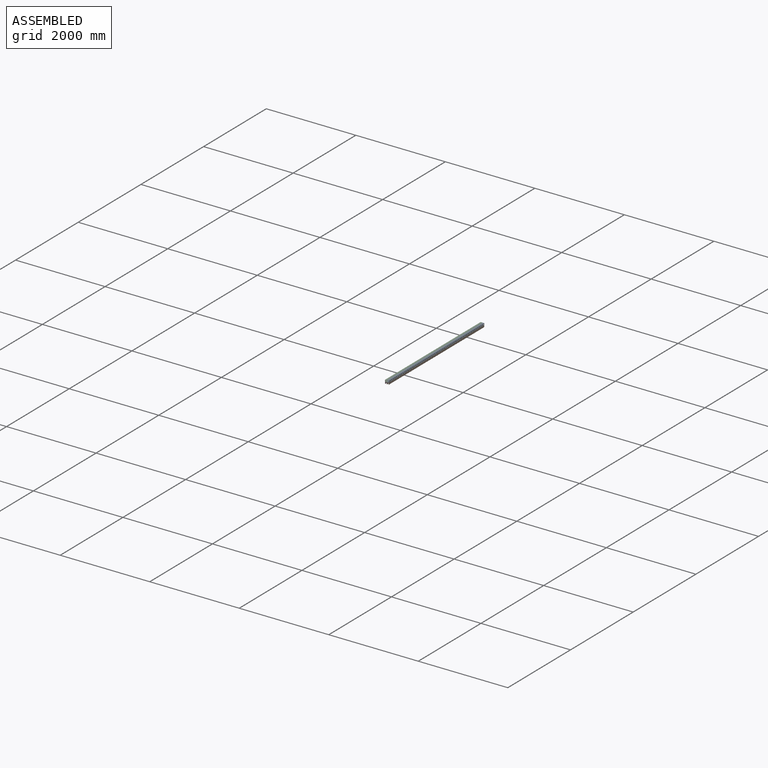
[diagram: assembled view]
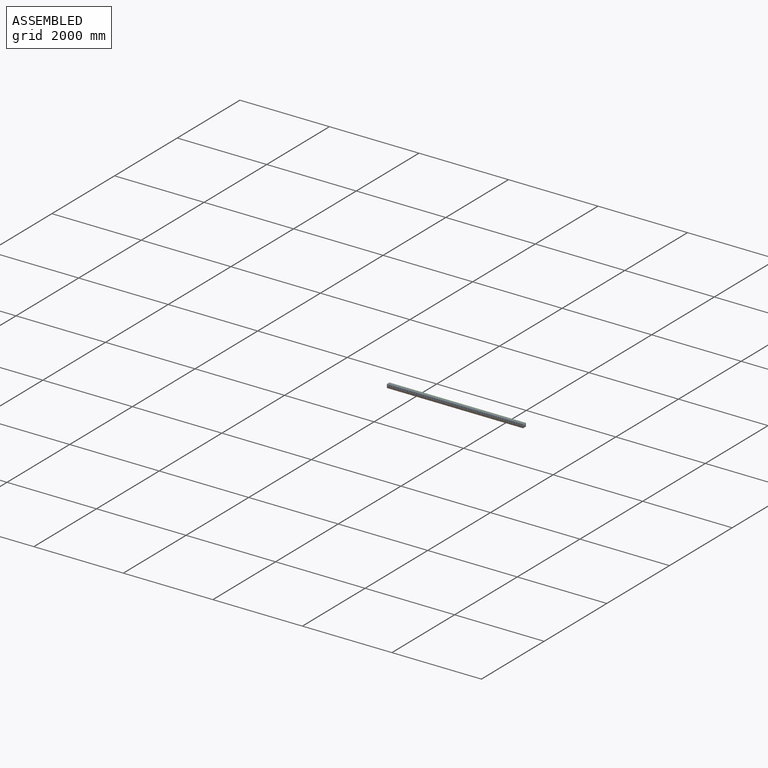
[diagram: assembled view, second angle]
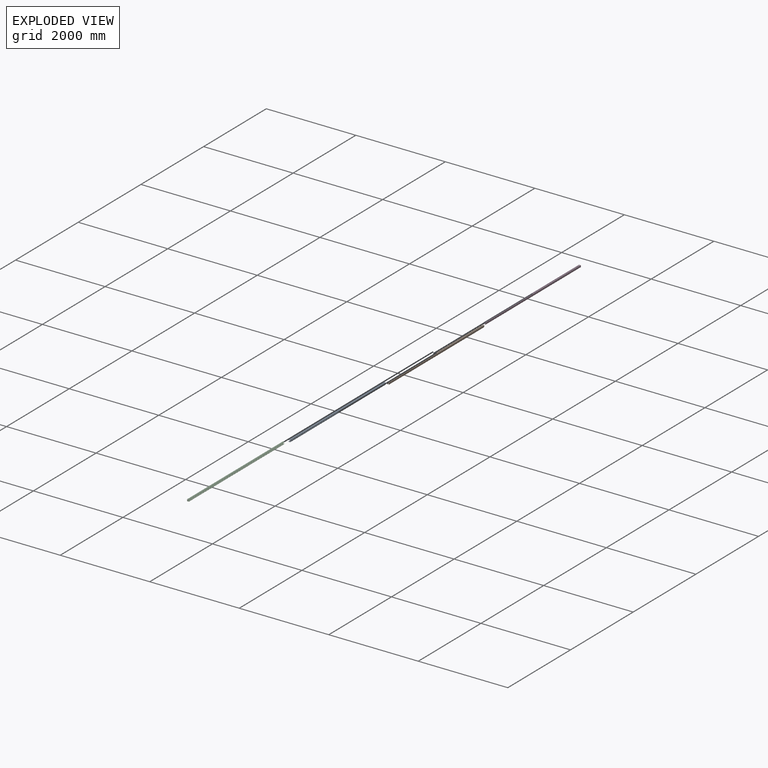
[diagram: exploded view]
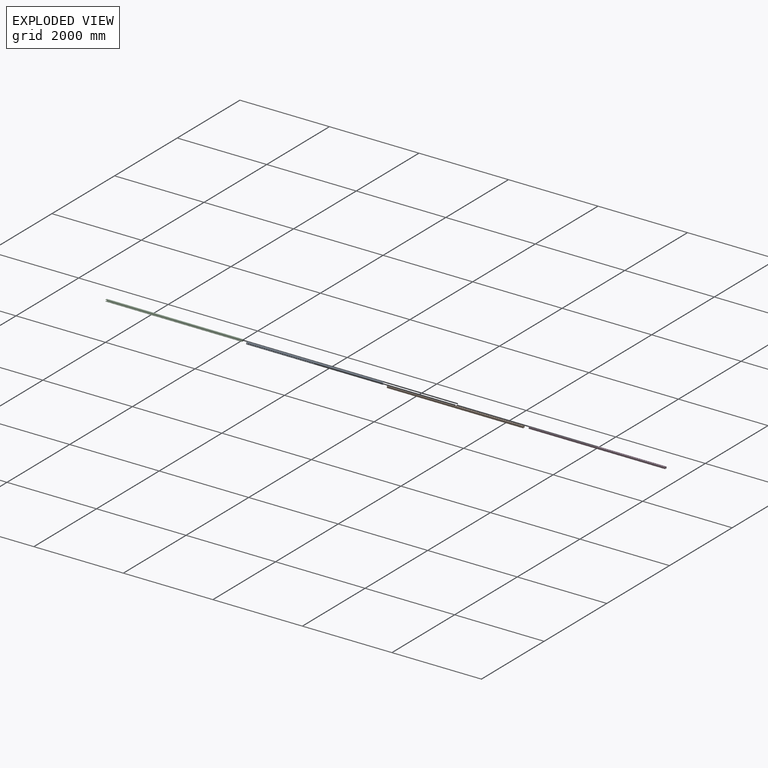
[diagram: exploded view, second angle]
ASSEMBLY  parts=4 mates=3
PART A: 270 faces, bbox 41.3x41.3x3048 mm
  f0: cylinder r=7.14mm len=14.29mm, axis (1,0,0), area 57mm2, adj f11,f24,f50,f51
  f1: cylinder r=7.14mm len=14.29mm, axis (1,0,0), area 57mm2, adj f11,f24,f47,f48
  f2: cylinder r=7.14mm len=14.29mm, axis (1,0,0), area 57mm2, adj f11,f24,f44,f45
  f3: cylinder r=7.14mm len=14.29mm, axis (1,0,0), area 57mm2, adj f11,f24,f41,f42
  f4: cylinder r=7.14mm len=14.29mm, axis (1,0,0), area 57mm2, adj f11,f24,f39,f40
  f5: cylinder r=7.14mm len=14.29mm, axis (1,0,0), area 57mm2, adj f11,f24,f36,f37
  f6: cylinder r=1.27mm len=3048mm, axis (0,0,1), area 12161mm2, adj f30,f31,f34,f251
  f7: cylinder r=1.27mm len=3048mm, axis (0,0,1), area 12161mm2, adj f17,f18,f34,f251
  f8: cylinder r=5.05mm len=3048mm, axis (0,0,1), area 24169.9mm2, adj f9,f33,f34,f251
  f9: plane 3048x32.77mm, normal (0,1,0), area 99870.8mm2, adj f8,f10,f34,f251
  f10: cylinder r=3.46mm len=3048mm, axis (0,0,1), area 16569.3mm2, adj f9,f11,f34,f251
  f11: plane 3048x34.35mm, normal (1,0,0), area 82842mm2, adj f0,f1,f2,f3,f4,f5,f10,f12
  f12: cylinder r=3.46mm len=3048mm, axis (0,0,1), area 16569.3mm2, adj f11,f13,f34,f251
  f13: plane 3048x32.77mm, normal (0,-1,0), area 99870.8mm2, adj f12,f14,f34,f251
  f14: cylinder r=5.05mm len=3048mm, axis (0,0,1), area 24169.9mm2, adj f13,f15,f34,f251
  f15: plane 3048x1.02mm, normal (-1,0,0), area 3096.8mm2, adj f14,f16,f34,f251
  f16: cylinder r=3.46mm len=3048mm, axis (0,0,1), area 16569.3mm2, adj f15,f17,f34,f251
  f17: plane 3048x2.41mm, normal (0,1,0), area 7335.5mm2, adj f7,f16,f34,f251
  f18: plane 3048x2.41mm, normal (0,-1,0), area 7335.5mm2, adj f7,f19,f34,f251
  f19: cylinder r=0.92mm len=3048mm, axis (0,0,1), area 4408.4mm2, adj f18,f20,f34,f251
  f20: plane 3048x1.02mm, normal (1,0,0), area 3096.8mm2, adj f19,f21,f34,f251
  f21: cylinder r=2.51mm len=3048mm, axis (0,0,1), area 12009mm2, adj f20,f22,f34,f251
  f22: plane 3048x32.77mm, normal (0,1,0), area 99870.8mm2, adj f21,f23,f34,f251
  f23: cylinder r=0.92mm len=3048mm, axis (0,0,1), area 4408.4mm2, adj f22,f24,f34,f251
  f24: plane 3048x34.35mm, normal (-1,0,0), area 82842mm2, adj f0,f1,f2,f3,f4,f5,f23,f25
  f25: cylinder r=0.92mm len=3048mm, axis (0,0,1), area 4408.4mm2, adj f24,f26,f34,f251
  f26: plane 3048x32.77mm, normal (0,-1,0), area 99870.8mm2, adj f25,f27,f34,f251
  f27: cylinder r=2.51mm len=3048mm, axis (0,0,1), area 12009mm2, adj f26,f28,f34,f251
  f28: plane 3048x1.02mm, normal (1,0,0), area 3096.8mm2, adj f27,f29,f34,f251
  f29: cylinder r=0.92mm len=3048mm, axis (0,0,1), area 4408.4mm2, adj f28,f30,f34,f251
  f30: plane 3048x2.41mm, normal (0,1,0), area 7335.5mm2, adj f6,f29,f34,f251
  f31: plane 3048x2.41mm, normal (0,-1,0), area 7335.5mm2, adj f6,f32,f34,f251
  f32: cylinder r=3.46mm len=3048mm, axis (0,0,1), area 16569.3mm2, adj f31,f33,f34,f251
  f33: plane 3048x1.02mm, normal (-1,0,0), area 3096.8mm2, adj f8,f32,f34,f251
  f34: plane 41.28x41.28mm, normal (0,0,1), area 341.3mm2, adj f6,f7,f8,f9,f10,f11,f12,f13
  f35: cylinder r=7.14mm len=14.29mm, axis (1,0,0), area 57mm2, adj f11,f24,f36,f37
  f36: plane 14.29x2.54mm, normal (0,-1,0), area 36.3mm2, adj f5,f11,f24,f35
  f37: plane 14.29x2.54mm, normal (0,1,0), area 36.3mm2, adj f5,f11,f24,f35
  f38: cylinder r=7.14mm len=14.29mm, axis (1,0,0), area 57mm2, adj f11,f24,f39,f40
  f39: plane 14.29x2.54mm, normal (0,-1,0), area 36.3mm2, adj f4,f11,f24,f38
  f40: plane 14.29x2.54mm, normal (0,1,0), area 36.3mm2, adj f4,f11,f24,f38
  f41: plane 14.29x2.54mm, normal (0,1,0), area 36.3mm2, adj f3,f11,f24,f43
  f42: plane 14.29x2.54mm, normal (0,-1,0), area 36.3mm2, adj f3,f11,f24,f43
  f43: cylinder r=7.14mm len=14.29mm, axis (1,0,0), area 57mm2, adj f11,f24,f41,f42
  f44: plane 14.29x2.54mm, normal (0,1,0), area 36.3mm2, adj f2,f11,f24,f46
  f45: plane 14.29x2.54mm, normal (0,-1,0), area 36.3mm2, adj f2,f11,f24,f46
  f46: cylinder r=7.14mm len=14.29mm, axis (1,0,0), area 57mm2, adj f11,f24,f44,f45
  f47: plane 14.29x2.54mm, normal (0,1,0), area 36.3mm2, adj f1,f11,f24,f49
  f48: plane 14.29x2.54mm, normal (0,-1,0), area 36.3mm2, adj f1,f11,f24,f49
  f49: cylinder r=7.14mm len=14.29mm, axis (1,0,0), area 57mm2, adj f11,f24,f47,f48
  f50: plane 14.29x2.54mm, normal (0,1,0), area 36.3mm2, adj f0,f11,f24,f52
  f51: plane 14.29x2.54mm, normal (0,-1,0), area 36.3mm2, adj f0,f11,f24,f52
  f52: cylinder r=7.14mm len=14.29mm, axis (1,0,0), area 57mm2, adj f11,f24,f50,f51
  f53: cylinder r=7.14mm len=14.29mm, axis (1,0,0), area 57mm2, adj f11,f24,f74,f75
  f54: cylinder r=7.14mm len=14.29mm, axis (1,0,0), area 57mm2, adj f11,f24,f71,f72
  f55: cylinder r=7.14mm len=14.29mm, axis (1,0,0), area 57mm2, adj f11,f24,f68,f69
  f56: cylinder r=7.14mm len=14.29mm, axis (1,0,0), area 57mm2, adj f11,f24,f65,f66
  f57: cylinder r=7.14mm len=14.29mm, axis (1,0,0), area 57mm2, adj f11,f24,f63,f64
  f58: cylinder r=7.14mm len=14.29mm, axis (1,0,0), area 57mm2, adj f11,f24,f60,f61
  f59: cylinder r=7.14mm len=14.29mm, axis (1,0,0), area 57mm2, adj f11,f24,f60,f61
  f60: plane 14.29x2.54mm, normal (0,-1,0), area 36.3mm2, adj f11,f24,f58,f59
  f61: plane 14.29x2.54mm, normal (0,1,0), area 36.3mm2, adj f11,f24,f58,f59
  f62: cylinder r=7.14mm len=14.29mm, axis (1,0,0), area 57mm2, adj f11,f24,f63,f64
  f63: plane 14.29x2.54mm, normal (0,-1,0), area 36.3mm2, adj f11,f24,f57,f62
  f64: plane 14.29x2.54mm, normal (0,1,0), area 36.3mm2, adj f11,f24,f57,f62
  f65: plane 14.29x2.54mm, normal (0,1,0), area 36.3mm2, adj f11,f24,f56,f67
  f66: plane 14.29x2.54mm, normal (0,-1,0), area 36.3mm2, adj f11,f24,f56,f67
  f67: cylinder r=7.14mm len=14.29mm, axis (1,0,0), area 57mm2, adj f11,f24,f65,f66
  f68: plane 14.29x2.54mm, normal (0,1,0), area 36.3mm2, adj f11,f24,f55,f70
  f69: plane 14.29x2.54mm, normal (0,-1,0), area 36.3mm2, adj f11,f24,f55,f70
  f70: cylinder r=7.14mm len=14.29mm, axis (1,0,0), area 57mm2, adj f11,f24,f68,f69
  f71: plane 14.29x2.54mm, normal (0,1,0), area 36.3mm2, adj f11,f24,f54,f73
  f72: plane 14.29x2.54mm, normal (0,-1,0), area 36.3mm2, adj f11,f24,f54,f73
  f73: cylinder r=7.14mm len=14.29mm, axis (1,0,0), area 57mm2, adj f11,f24,f71,f72
  f74: plane 14.29x2.54mm, normal (0,1,0), area 36.3mm2, adj f11,f24,f53,f76
  f75: plane 14.29x2.54mm, normal (0,-1,0), area 36.3mm2, adj f11,f24,f53,f76
  f76: cylinder r=7.14mm len=14.29mm, axis (1,0,0), area 57mm2, adj f11,f24,f74,f75
  f77: cylinder r=7.14mm len=14.29mm, axis (1,0,0), area 57mm2, adj f11,f24,f98,f99
  f78: cylinder r=7.14mm len=14.29mm, axis (1,0,0), area 57mm2, adj f11,f24,f95,f96
  f79: cylinder r=7.14mm len=14.29mm, axis (1,0,0), area 57mm2, adj f11,f24,f92,f93
  f80: cylinder r=7.14mm len=14.29mm, axis (1,0,0), area 57mm2, adj f11,f24,f89,f90
  f81: cylinder r=7.14mm len=14.29mm, axis (1,0,0), area 57mm2, adj f11,f24,f87,f88
  f82: cylinder r=7.14mm len=14.29mm, axis (1,0,0), area 57mm2, adj f11,f24,f84,f85
  f83: cylinder r=7.14mm len=14.29mm, axis (1,0,0), area 57mm2, adj f11,f24,f84,f85
  f84: plane 14.29x2.54mm, normal (0,-1,0), area 36.3mm2, adj f11,f24,f82,f83
  f85: plane 14.29x2.54mm, normal (0,1,0), area 36.3mm2, adj f11,f24,f82,f83
  f86: cylinder r=7.14mm len=14.29mm, axis (1,0,0), area 57mm2, adj f11,f24,f87,f88
  f87: plane 14.29x2.54mm, normal (0,-1,0), area 36.3mm2, adj f11,f24,f81,f86
  f88: plane 14.29x2.54mm, normal (0,1,0), area 36.3mm2, adj f11,f24,f81,f86
  f89: plane 14.29x2.54mm, normal (0,1,0), area 36.3mm2, adj f11,f24,f80,f91
  f90: plane 14.29x2.54mm, normal (0,-1,0), area 36.3mm2, adj f11,f24,f80,f91
  f91: cylinder r=7.14mm len=14.29mm, axis (1,0,0), area 57mm2, adj f11,f24,f89,f90
  f92: plane 14.29x2.54mm, normal (0,1,0), area 36.3mm2, adj f11,f24,f79,f94
  f93: plane 14.29x2.54mm, normal (0,-1,0), area 36.3mm2, adj f11,f24,f79,f94
  f94: cylinder r=7.14mm len=14.29mm, axis (1,0,0), area 57mm2, adj f11,f24,f92,f93
  f95: plane 14.29x2.54mm, normal (0,1,0), area 36.3mm2, adj f11,f24,f78,f97
  f96: plane 14.29x2.54mm, normal (0,-1,0), area 36.3mm2, adj f11,f24,f78,f97
  f97: cylinder r=7.14mm len=14.29mm, axis (1,0,0), area 57mm2, adj f11,f24,f95,f96
  f98: plane 14.29x2.54mm, normal (0,1,0), area 36.3mm2, adj f11,f24,f77,f100
  f99: plane 14.29x2.54mm, normal (0,-1,0), area 36.3mm2, adj f11,f24,f77,f100
  f100: cylinder r=7.14mm len=14.29mm, axis (1,0,0), area 57mm2, adj f11,f24,f98,f99
  f101: cylinder r=7.14mm len=14.29mm, axis (1,0,0), area 57mm2, adj f11,f24,f122,f123
  f102: cylinder r=7.14mm len=14.29mm, axis (1,0,0), area 57mm2, adj f11,f24,f119,f120
  f103: cylinder r=7.14mm len=14.29mm, axis (1,0,0), area 57mm2, adj f11,f24,f116,f117
  f104: cylinder r=7.14mm len=14.29mm, axis (1,0,0), area 57mm2, adj f11,f24,f113,f114
  f105: cylinder r=7.14mm len=14.29mm, axis (1,0,0), area 57mm2, adj f11,f24,f111,f112
  f106: cylinder r=7.14mm len=14.29mm, axis (1,0,0), area 57mm2, adj f11,f24,f108,f109
  f107: cylinder r=7.14mm len=14.29mm, axis (1,0,0), area 57mm2, adj f11,f24,f108,f109
  f108: plane 14.29x2.54mm, normal (0,-1,0), area 36.3mm2, adj f11,f24,f106,f107
  f109: plane 14.29x2.54mm, normal (0,1,0), area 36.3mm2, adj f11,f24,f106,f107
  f110: cylinder r=7.14mm len=14.29mm, axis (1,0,0), area 57mm2, adj f11,f24,f111,f112
  f111: plane 14.29x2.54mm, normal (0,-1,0), area 36.3mm2, adj f11,f24,f105,f110
  f112: plane 14.29x2.54mm, normal (0,1,0), area 36.3mm2, adj f11,f24,f105,f110
  f113: plane 14.29x2.54mm, normal (0,1,0), area 36.3mm2, adj f11,f24,f104,f115
  f114: plane 14.29x2.54mm, normal (0,-1,0), area 36.3mm2, adj f11,f24,f104,f115
  f115: cylinder r=7.14mm len=14.29mm, axis (1,0,0), area 57mm2, adj f11,f24,f113,f114
  f116: plane 14.29x2.54mm, normal (0,1,0), area 36.3mm2, adj f11,f24,f103,f118
  f117: plane 14.29x2.54mm, normal (0,-1,0), area 36.3mm2, adj f11,f24,f103,f118
  f118: cylinder r=7.14mm len=14.29mm, axis (1,0,0), area 57mm2, adj f11,f24,f116,f117
  f119: plane 14.29x2.54mm, normal (0,1,0), area 36.3mm2, adj f11,f24,f102,f121
  f120: plane 14.29x2.54mm, normal (0,-1,0), area 36.3mm2, adj f11,f24,f102,f121
  f121: cylinder r=7.14mm len=14.29mm, axis (1,0,0), area 57mm2, adj f11,f24,f119,f120
  f122: plane 14.29x2.54mm, normal (0,1,0), area 36.3mm2, adj f11,f24,f101,f124
  f123: plane 14.29x2.54mm, normal (0,-1,0), area 36.3mm2, adj f11,f24,f101,f124
  f124: cylinder r=7.14mm len=14.29mm, axis (1,0,0), area 57mm2, adj f11,f24,f122,f123
  f125: cylinder r=7.14mm len=14.29mm, axis (1,0,0), area 57mm2, adj f11,f24,f146,f147
  f126: cylinder r=7.14mm len=14.29mm, axis (1,0,0), area 57mm2, adj f11,f24,f143,f144
  f127: cylinder r=7.14mm len=14.29mm, axis (1,0,0), area 57mm2, adj f11,f24,f140,f141
  f128: cylinder r=7.14mm len=14.29mm, axis (1,0,0), area 57mm2, adj f11,f24,f137,f138
  f129: cylinder r=7.14mm len=14.29mm, axis (1,0,0), area 57mm2, adj f11,f24,f135,f136
  f130: cylinder r=7.14mm len=14.29mm, axis (1,0,0), area 57mm2, adj f11,f24,f132,f133
  f131: cylinder r=7.14mm len=14.29mm, axis (1,0,0), area 57mm2, adj f11,f24,f132,f133
  f132: plane 14.29x2.54mm, normal (0,-1,0), area 36.3mm2, adj f11,f24,f130,f131
  f133: plane 14.29x2.54mm, normal (0,1,0), area 36.3mm2, adj f11,f24,f130,f131
  f134: cylinder r=7.14mm len=14.29mm, axis (1,0,0), area 57mm2, adj f11,f24,f135,f136
  f135: plane 14.29x2.54mm, normal (0,-1,0), area 36.3mm2, adj f11,f24,f129,f134
  f136: plane 14.29x2.54mm, normal (0,1,0), area 36.3mm2, adj f11,f24,f129,f134
  f137: plane 14.29x2.54mm, normal (0,1,0), area 36.3mm2, adj f11,f24,f128,f139
  f138: plane 14.29x2.54mm, normal (0,-1,0), area 36.3mm2, adj f11,f24,f128,f139
  f139: cylinder r=7.14mm len=14.29mm, axis (1,0,0), area 57mm2, adj f11,f24,f137,f138
  f140: plane 14.29x2.54mm, normal (0,1,0), area 36.3mm2, adj f11,f24,f127,f142
  f141: plane 14.29x2.54mm, normal (0,-1,0), area 36.3mm2, adj f11,f24,f127,f142
  f142: cylinder r=7.14mm len=14.29mm, axis (1,0,0), area 57mm2, adj f11,f24,f140,f141
  f143: plane 14.29x2.54mm, normal (0,1,0), area 36.3mm2, adj f11,f24,f126,f145
  f144: plane 14.29x2.54mm, normal (0,-1,0), area 36.3mm2, adj f11,f24,f126,f145
  f145: cylinder r=7.14mm len=14.29mm, axis (1,0,0), area 57mm2, adj f11,f24,f143,f144
  f146: plane 14.29x2.54mm, normal (0,1,0), area 36.3mm2, adj f11,f24,f125,f148
  f147: plane 14.29x2.54mm, normal (0,-1,0), area 36.3mm2, adj f11,f24,f125,f148
  f148: cylinder r=7.14mm len=14.29mm, axis (1,0,0), area 57mm2, adj f11,f24,f146,f147
  f149: cylinder r=7.14mm len=14.29mm, axis (1,0,0), area 57mm2, adj f11,f24,f170,f171
  f150: cylinder r=7.14mm len=14.29mm, axis (1,0,0), area 57mm2, adj f11,f24,f167,f168
  f151: cylinder r=7.14mm len=14.29mm, axis (1,0,0), area 57mm2, adj f11,f24,f164,f165
  f152: cylinder r=7.14mm len=14.29mm, axis (1,0,0), area 57mm2, adj f11,f24,f161,f162
  f153: cylinder r=7.14mm len=14.29mm, axis (1,0,0), area 57mm2, adj f11,f24,f159,f160
  f154: cylinder r=7.14mm len=14.29mm, axis (1,0,0), area 57mm2, adj f11,f24,f156,f157
  f155: cylinder r=7.14mm len=14.29mm, axis (1,0,0), area 57mm2, adj f11,f24,f156,f157
  f156: plane 14.29x2.54mm, normal (0,-1,0), area 36.3mm2, adj f11,f24,f154,f155
  f157: plane 14.29x2.54mm, normal (0,1,0), area 36.3mm2, adj f11,f24,f154,f155
  f158: cylinder r=7.14mm len=14.29mm, axis (1,0,0), area 57mm2, adj f11,f24,f159,f160
  f159: plane 14.29x2.54mm, normal (0,-1,0), area 36.3mm2, adj f11,f24,f153,f158
  f160: plane 14.29x2.54mm, normal (0,1,0), area 36.3mm2, adj f11,f24,f153,f158
  f161: plane 14.29x2.54mm, normal (0,1,0), area 36.3mm2, adj f11,f24,f152,f163
  f162: plane 14.29x2.54mm, normal (0,-1,0), area 36.3mm2, adj f11,f24,f152,f163
  f163: cylinder r=7.14mm len=14.29mm, axis (1,0,0), area 57mm2, adj f11,f24,f161,f162
  f164: plane 14.29x2.54mm, normal (0,1,0), area 36.3mm2, adj f11,f24,f151,f166
  f165: plane 14.29x2.54mm, normal (0,-1,0), area 36.3mm2, adj f11,f24,f151,f166
  f166: cylinder r=7.14mm len=14.29mm, axis (1,0,0), area 57mm2, adj f11,f24,f164,f165
  f167: plane 14.29x2.54mm, normal (0,1,0), area 36.3mm2, adj f11,f24,f150,f169
  f168: plane 14.29x2.54mm, normal (0,-1,0), area 36.3mm2, adj f11,f24,f150,f169
  f169: cylinder r=7.14mm len=14.29mm, axis (1,0,0), area 57mm2, adj f11,f24,f167,f168
  f170: plane 14.29x2.54mm, normal (0,1,0), area 36.3mm2, adj f11,f24,f149,f172
  f171: plane 14.29x2.54mm, normal (0,-1,0), area 36.3mm2, adj f11,f24,f149,f172
  f172: cylinder r=7.14mm len=14.29mm, axis (1,0,0), area 57mm2, adj f11,f24,f170,f171
  f173: cylinder r=7.14mm len=14.29mm, axis (1,0,0), area 57mm2, adj f11,f24,f194,f195
  f174: cylinder r=7.14mm len=14.29mm, axis (1,0,0), area 57mm2, adj f11,f24,f191,f192
  f175: cylinder r=7.14mm len=14.29mm, axis (1,0,0), area 57mm2, adj f11,f24,f188,f189
  f176: cylinder r=7.14mm len=14.29mm, axis (1,0,0), area 57mm2, adj f11,f24,f185,f186
  f177: cylinder r=7.14mm len=14.29mm, axis (1,0,0), area 57mm2, adj f11,f24,f183,f184
  f178: cylinder r=7.14mm len=14.29mm, axis (1,0,0), area 57mm2, adj f11,f24,f180,f181
  f179: cylinder r=7.14mm len=14.29mm, axis (1,0,0), area 57mm2, adj f11,f24,f180,f181
  f180: plane 14.29x2.54mm, normal (0,-1,0), area 36.3mm2, adj f11,f24,f178,f179
  f181: plane 14.29x2.54mm, normal (0,1,0), area 36.3mm2, adj f11,f24,f178,f179
  f182: cylinder r=7.14mm len=14.29mm, axis (1,0,0), area 57mm2, adj f11,f24,f183,f184
  f183: plane 14.29x2.54mm, normal (0,-1,0), area 36.3mm2, adj f11,f24,f177,f182
  f184: plane 14.29x2.54mm, normal (0,1,0), area 36.3mm2, adj f11,f24,f177,f182
  f185: plane 14.29x2.54mm, normal (0,1,0), area 36.3mm2, adj f11,f24,f176,f187
  f186: plane 14.29x2.54mm, normal (0,-1,0), area 36.3mm2, adj f11,f24,f176,f187
  f187: cylinder r=7.14mm len=14.29mm, axis (1,0,0), area 57mm2, adj f11,f24,f185,f186
  f188: plane 14.29x2.54mm, normal (0,1,0), area 36.3mm2, adj f11,f24,f175,f190
  f189: plane 14.29x2.54mm, normal (0,-1,0), area 36.3mm2, adj f11,f24,f175,f190
  f190: cylinder r=7.14mm len=14.29mm, axis (1,0,0), area 57mm2, adj f11,f24,f188,f189
  f191: plane 14.29x2.54mm, normal (0,1,0), area 36.3mm2, adj f11,f24,f174,f193
  f192: plane 14.29x2.54mm, normal (0,-1,0), area 36.3mm2, adj f11,f24,f174,f193
  f193: cylinder r=7.14mm len=14.29mm, axis (1,0,0), area 57mm2, adj f11,f24,f191,f192
  f194: plane 14.29x2.54mm, normal (0,1,0), area 36.3mm2, adj f11,f24,f173,f196
  f195: plane 14.29x2.54mm, normal (0,-1,0), area 36.3mm2, adj f11,f24,f173,f196
  f196: cylinder r=7.14mm len=14.29mm, axis (1,0,0), area 57mm2, adj f11,f24,f194,f195
  f197: cylinder r=7.14mm len=14.29mm, axis (1,0,0), area 57mm2, adj f11,f24,f218,f219
  f198: cylinder r=7.14mm len=14.29mm, axis (1,0,0), area 57mm2, adj f11,f24,f215,f216
  f199: cylinder r=7.14mm len=14.29mm, axis (1,0,0), area 57mm2, adj f11,f24,f212,f213
  f200: cylinder r=7.14mm len=14.29mm, axis (1,0,0), area 57mm2, adj f11,f24,f209,f210
  f201: cylinder r=7.14mm len=14.29mm, axis (1,0,0), area 57mm2, adj f11,f24,f207,f208
  f202: cylinder r=7.14mm len=14.29mm, axis (1,0,0), area 57mm2, adj f11,f24,f204,f205
  f203: cylinder r=7.14mm len=14.29mm, axis (1,0,0), area 57mm2, adj f11,f24,f204,f205
  f204: plane 14.29x2.54mm, normal (0,-1,0), area 36.3mm2, adj f11,f24,f202,f203
  f205: plane 14.29x2.54mm, normal (0,1,0), area 36.3mm2, adj f11,f24,f202,f203
  f206: cylinder r=7.14mm len=14.29mm, axis (1,0,0), area 57mm2, adj f11,f24,f207,f208
  f207: plane 14.29x2.54mm, normal (0,-1,0), area 36.3mm2, adj f11,f24,f201,f206
  f208: plane 14.29x2.54mm, normal (0,1,0), area 36.3mm2, adj f11,f24,f201,f206
  f209: plane 14.29x2.54mm, normal (0,1,0), area 36.3mm2, adj f11,f24,f200,f211
  f210: plane 14.29x2.54mm, normal (0,-1,0), area 36.3mm2, adj f11,f24,f200,f211
  f211: cylinder r=7.14mm len=14.29mm, axis (1,0,0), area 57mm2, adj f11,f24,f209,f210
  f212: plane 14.29x2.54mm, normal (0,1,0), area 36.3mm2, adj f11,f24,f199,f214
  f213: plane 14.29x2.54mm, normal (0,-1,0), area 36.3mm2, adj f11,f24,f199,f214
  f214: cylinder r=7.14mm len=14.29mm, axis (1,0,0), area 57mm2, adj f11,f24,f212,f213
  f215: plane 14.29x2.54mm, normal (0,1,0), area 36.3mm2, adj f11,f24,f198,f217
  f216: plane 14.29x2.54mm, normal (0,-1,0), area 36.3mm2, adj f11,f24,f198,f217
  f217: cylinder r=7.14mm len=14.29mm, axis (1,0,0), area 57mm2, adj f11,f24,f215,f216
  f218: plane 14.29x2.54mm, normal (0,1,0), area 36.3mm2, adj f11,f24,f197,f220
  f219: plane 14.29x2.54mm, normal (0,-1,0), area 36.3mm2, adj f11,f24,f197,f220
  f220: cylinder r=7.14mm len=14.29mm, axis (1,0,0), area 57mm2, adj f11,f24,f218,f219
  f221: cylinder r=7.14mm len=14.29mm, axis (1,0,0), area 57mm2, adj f11,f24,f242,f243
  f222: cylinder r=7.14mm len=14.29mm, axis (1,0,0), area 57mm2, adj f11,f24,f239,f240
  f223: cylinder r=7.14mm len=14.29mm, axis (1,0,0), area 57mm2, adj f11,f24,f236,f237
  f224: cylinder r=7.14mm len=14.29mm, axis (1,0,0), area 57mm2, adj f11,f24,f233,f234
  f225: cylinder r=7.14mm len=14.29mm, axis (1,0,0), area 57mm2, adj f11,f24,f231,f232
  f226: cylinder r=7.14mm len=14.29mm, axis (1,0,0), area 57mm2, adj f11,f24,f228,f229
  f227: cylinder r=7.14mm len=14.29mm, axis (1,0,0), area 57mm2, adj f11,f24,f228,f229
  f228: plane 14.29x2.54mm, normal (0,-1,0), area 36.3mm2, adj f11,f24,f226,f227
  f229: plane 14.29x2.54mm, normal (0,1,0), area 36.3mm2, adj f11,f24,f226,f227
  f230: cylinder r=7.14mm len=14.29mm, axis (1,0,0), area 57mm2, adj f11,f24,f231,f232
  f231: plane 14.29x2.54mm, normal (0,-1,0), area 36.3mm2, adj f11,f24,f225,f230
  f232: plane 14.29x2.54mm, normal (0,1,0), area 36.3mm2, adj f11,f24,f225,f230
  f233: plane 14.29x2.54mm, normal (0,1,0), area 36.3mm2, adj f11,f24,f224,f235
  f234: plane 14.29x2.54mm, normal (0,-1,0), area 36.3mm2, adj f11,f24,f224,f235
  f235: cylinder r=7.14mm len=14.29mm, axis (1,0,0), area 57mm2, adj f11,f24,f233,f234
  f236: plane 14.29x2.54mm, normal (0,1,0), area 36.3mm2, adj f11,f24,f223,f238
  f237: plane 14.29x2.54mm, normal (0,-1,0), area 36.3mm2, adj f11,f24,f223,f238
  f238: cylinder r=7.14mm len=14.29mm, axis (1,0,0), area 57mm2, adj f11,f24,f236,f237
  f239: plane 14.29x2.54mm, normal (0,1,0), area 36.3mm2, adj f11,f24,f222,f241
  f240: plane 14.29x2.54mm, normal (0,-1,0), area 36.3mm2, adj f11,f24,f222,f241
  f241: cylinder r=7.14mm len=14.29mm, axis (1,0,0), area 57mm2, adj f11,f24,f239,f240
  f242: plane 14.29x2.54mm, normal (0,1,0), area 36.3mm2, adj f11,f24,f221,f244
  f243: plane 14.29x2.54mm, normal (0,-1,0), area 36.3mm2, adj f11,f24,f221,f244
  f244: cylinder r=7.14mm len=14.29mm, axis (1,0,0), area 57mm2, adj f11,f24,f242,f243
  f245: cylinder r=7.14mm len=14.29mm, axis (1,0,0), area 57mm2, adj f11,f24,f267,f268
  f246: cylinder r=7.14mm len=14.29mm, axis (1,0,0), area 57mm2, adj f11,f24,f264,f265
  f247: cylinder r=7.14mm len=14.29mm, axis (1,0,0), area 57mm2, adj f11,f24,f261,f262
  f248: cylinder r=7.14mm len=14.29mm, axis (1,0,0), area 57mm2, adj f11,f24,f258,f259
  f249: cylinder r=7.14mm len=14.29mm, axis (1,0,0), area 57mm2, adj f11,f24,f256,f257
  f250: cylinder r=7.14mm len=14.29mm, axis (1,0,0), area 57mm2, adj f11,f24,f253,f254
  f251: plane 41.28x41.28mm, normal (0,0,-1), area 341.3mm2, adj f6,f7,f8,f9,f10,f11,f12,f13
  f252: cylinder r=7.14mm len=14.29mm, axis (1,0,0), area 57mm2, adj f11,f24,f253,f254
  f253: plane 14.29x2.54mm, normal (0,-1,0), area 36.3mm2, adj f11,f24,f250,f252
  f254: plane 14.29x2.54mm, normal (0,1,0), area 36.3mm2, adj f11,f24,f250,f252
  f255: cylinder r=7.14mm len=14.29mm, axis (1,0,0), area 57mm2, adj f11,f24,f256,f257
  f256: plane 14.29x2.54mm, normal (0,-1,0), area 36.3mm2, adj f11,f24,f249,f255
  f257: plane 14.29x2.54mm, normal (0,1,0), area 36.3mm2, adj f11,f24,f249,f255
  f258: plane 14.29x2.54mm, normal (0,1,0), area 36.3mm2, adj f11,f24,f248,f260
  f259: plane 14.29x2.54mm, normal (0,-1,0), area 36.3mm2, adj f11,f24,f248,f260
  f260: cylinder r=7.14mm len=14.29mm, axis (1,0,0), area 57mm2, adj f11,f24,f258,f259
  f261: plane 14.29x2.54mm, normal (0,1,0), area 36.3mm2, adj f11,f24,f247,f263
  f262: plane 14.29x2.54mm, normal (0,-1,0), area 36.3mm2, adj f11,f24,f247,f263
  f263: cylinder r=7.14mm len=14.29mm, axis (1,0,0), area 57mm2, adj f11,f24,f261,f262
  f264: plane 14.29x2.54mm, normal (0,1,0), area 36.3mm2, adj f11,f24,f246,f266
  f265: plane 14.29x2.54mm, normal (0,-1,0), area 36.3mm2, adj f11,f24,f246,f266
  f266: cylinder r=7.14mm len=14.29mm, axis (1,0,0), area 57mm2, adj f11,f24,f264,f265
  f267: plane 14.29x2.54mm, normal (0,1,0), area 36.3mm2, adj f11,f24,f245,f269
  f268: plane 14.29x2.54mm, normal (0,-1,0), area 36.3mm2, adj f11,f24,f245,f269
  f269: cylinder r=7.14mm len=14.29mm, axis (1,0,0), area 57mm2, adj f11,f24,f267,f268
PART B: same geometry as A
PART C: same geometry as A
PART D: same geometry as A
PLACE A rot(axis=(1,0,0),90deg) t=(750.6,-588.74,94.09)mm
PLACE B rot(axis=(0.58,-0.58,0.58),120deg) t=(729.96,-588.74,73.46)mm
PLACE C rot(axis=(0,0.71,-0.71),180deg) t=(668.05,-588.74,94.09)mm
PLACE D rot(axis=(0.58,-0.58,0.58),120deg) t=(688.68,-588.74,73.46)mm
MATE fastened B.f34 <-> D.f34  axis (0,-1,0) through (709.32,-588.74,70)mm
MATE fastened C.f34 <-> D.f34  axis (0,-1,0) through (671.51,-588.74,73.46)mm
MATE fastened A.f34 <-> B.f34  axis (0,-1,0) through (747.14,-588.74,73.46)mm
